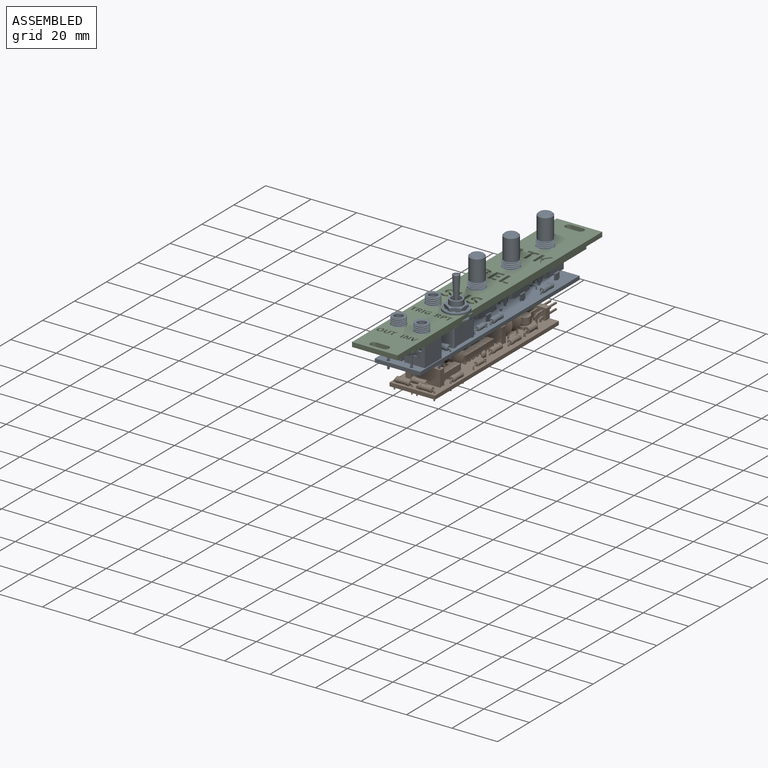
[diagram: assembled view]
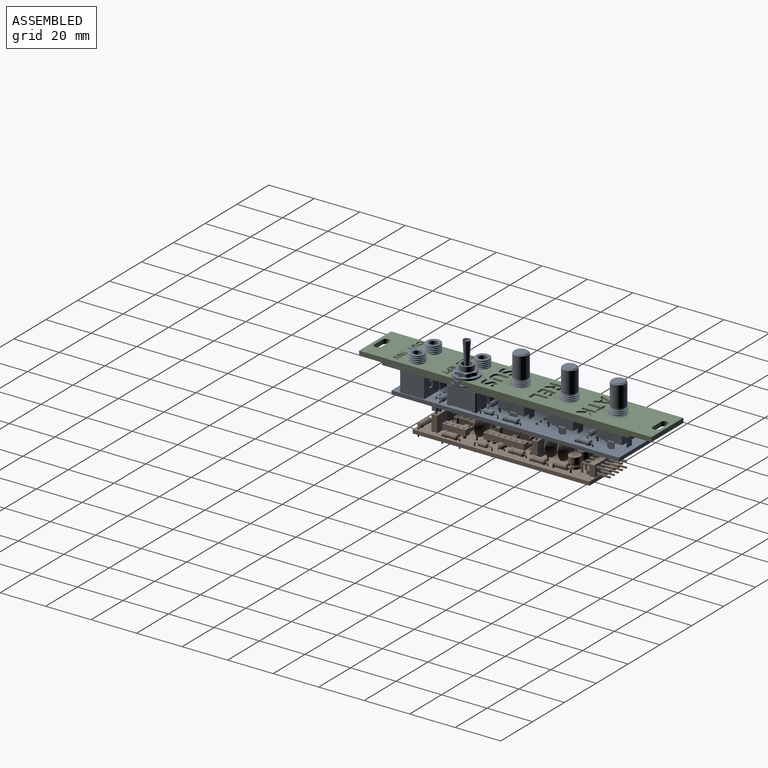
[diagram: assembled view, second angle]
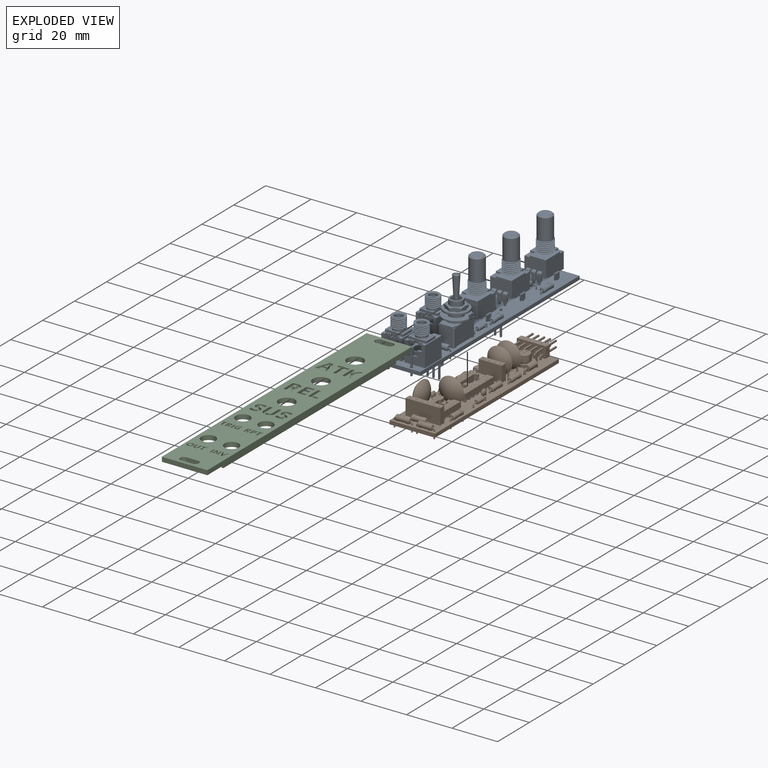
[diagram: exploded view]
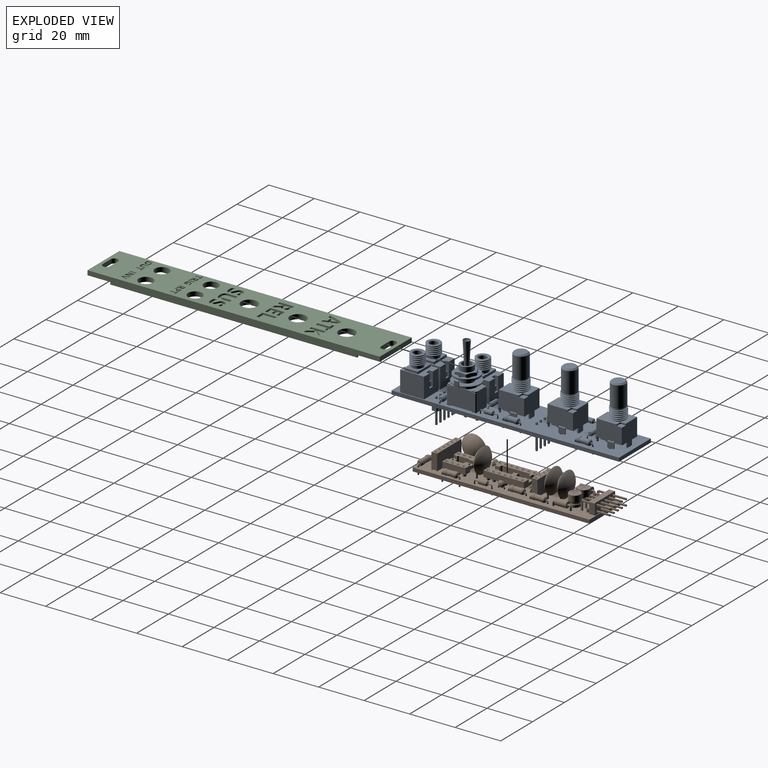
[diagram: exploded view, second angle]
FCSTD DOCUMENT  (FreeCAD 0.20R29177 (Git))
Label: ASREnvelope_panel
License: All rights reserved
LicenseURL: http://en.wikipedia.org/wiki/All_rights_reserved
objects: Part::Feature×53, App::Link×27, App::Part×15, Part::Part2DObjectPython×7, PartDesign::Pocket×7, PartDesign::SubShapeBinder×5, Sketcher::SketchObject×4, PartDesign::CoordinateSystem×2, PartDesign::Pad×2, Spreadsheet::Sheet×1, PartDesign::Body×1
note: 90 computed .brp shape members not serialized (recipe doc carries the construction recipe); baked Part::Feature solids carry a one-line shape summary decoded from their .brp

FEATURE [PartDesign::CoordinateSystem] Local_CS_d228
  AttacherType = Attacher::AttachEngine3D
FEATURE [Part::Feature] Pcb_d228
  Placement = pos=(-141.13,44.3888,0) rot=(0,0,1;0rad)
  shape: bbox 20 x 100 x 1.6 mm, 63 faces (baked)
FEATURE [Sketcher::SketchObject] PCB_Sketch_d228
  FullyConstrained = false
  sketch-geometry (4):
    g0: LineSegment StartX=0 StartY=-100 StartZ=0 EndX=20 EndY=-100 EndZ=0
    g1: LineSegment StartX=0 StartY=0 StartZ=0 EndX=0 EndY=-100 EndZ=0
    g2: LineSegment StartX=0 StartY=0 StartZ=0 EndX=20 EndY=0 EndZ=0
    g3: LineSegment StartX=20 StartY=0 StartZ=0 EndX=20 EndY=-100 EndZ=0
  constraints (4):
    c: Coincident(g0,g1)
    c: Coincident(g1,g2)
    c: Coincident(g0,g3)
    c: Coincident(g2,g3)
FEATURE [Part::Feature] Part__Feature  label="RD901F v18"
  shape: bbox 11.35 x 9.5 x 4.75 mm, 24 faces (baked)
FEATURE [Part::Feature] Part__Feature001  label="RD901F v019"
  shape: bbox 11.35 x 9.5 x 2.5 mm, 38 faces (baked)
FEATURE [Part::Feature] Part__Feature002  label="RD901F v020"
  shape: bbox 8.172 x 8.169 x 5.497 mm, 20 faces (baked)
FEATURE [Part::Feature] Part__Feature003  label="RD901F v021"
  shape: bbox 6.35 x 6.35 x 10 mm, 4 faces (baked)
FEATURE [Part::Feature] Part__Feature004  label="RD901F v022"
  shape: bbox 1.15 x 1.8 x 8.5 mm, 16 faces (baked)
FEATURE [Part::Feature] Part__Feature005  label="RD901F v023"
  shape: bbox 1.15 x 1.8 x 8.5 mm, 16 faces (baked)
FEATURE [Part::Feature] Part__Feature006  label="RD901F v024"
  shape: bbox 1.15 x 1.8 x 8.5 mm, 16 faces (baked)
FEATURE [Part::Feature] Part__Feature007  label="RD901F v025"
  shape: bbox 9.5 x 10.3 x 6.25 mm, 46 faces (baked)
FEATURE [App::Part] RD901F_v18  label="RV1_RD901F v026_5cfaebfccd80"
  Group = -> [Part__Feature,Part__Feature001,Part__Feature002,Part__Feature003,Part__Feature004,Part__Feature005,Part__Feature006,Part__Feature007]
  Origin = -> Origin008
  Placement = pos=(10,-50.08,0) rot=(0,0,1;1.5708rad)
FEATURE [Part::Feature] Shape  label="J6_PinHeader_1x04_P254mm_Vertical_c5793d6ff377"
  Placement = pos=(13.8,-40.555,-2) rot=(0.707107,0.707107,0;3.14159rad)
  shape: bbox 10.16 x 2.54 x 11.54 mm, 100 faces (baked)
FEATURE [Part::Feature] Shape001  label="R8_R_Axial_DIN0207_L63mm_D25mm_P762mm_Horizontal_d0f55797378b"
  Placement = pos=(17.62,-13.25,0) rot=(0,0,-1;1.5708rad)
  shape: bbox 2.706 x 8.418 x 5.603 mm, 15 faces (baked)
FEATURE [Part::Feature] Part__Feature008  label="SPDT Toggle Switch Base"
  Placement = pos=(-12.3077,3.81119,0) rot=(0,0,1;0rad)
  shape: bbox 13 x 8 x 7 mm, 18 faces (baked)
FEATURE [Part::Feature] Part__Feature009  label="SPDT Toggle Switch Pin"
  Placement = pos=(-5.80769,-0.188811,0) rot=(1,0,0;1.5708rad)
  shape: bbox 0.95 x 4 x 2.2 mm, 10 faces (baked)
FEATURE [Part::Feature] Part__Feature010  label="SPDT Toggle Switch Pin001"
  Placement = pos=(-0.782692,-0.188811,0) rot=(1,0,0;1.5708rad)
  shape: bbox 0.95 x 4 x 2.2 mm, 10 faces (baked)
FEATURE [Part::Feature] Part__Feature011  label="SPDT Toggle Switch Pin002"
  Placement = pos=(4.24231,-0.188811,0) rot=(1,0,0;1.5708rad)
  shape: bbox 0.95 x 4 x 2.2 mm, 10 faces (baked)
FEATURE [Part::Feature] Part__Feature012  label="SPDT Toggle Switch Treaded Tube"
  Placement = pos=(-18.8077,7.81119,0) rot=(0,0.707107,0.707107;3.14159rad)
  shape: bbox 5.9 x 8.4 x 5.9 mm, 4 faces (baked)
FEATURE [Part::Feature] Part__Feature013  label="SPDT Toggle Switch Treaded Tube001"
  Placement = pos=(-18.8077,7.81119,0) rot=(0,0.707107,0.707107;3.14159rad)
  shape: bbox 13 x 8 x 7.2 mm, 24 faces (baked)
FEATURE [App::Part] SPDT_Toggle_Switch_Treaded_Tube  label="SPDT Toggle Switch Treaded Tube002"
  Group = -> [Part__Feature012,Part__Feature013]
  Origin = -> Origin009
FEATURE [Part::Feature] Part__Feature014  label="Toggle Switch"
  Placement = pos=(-12.3077,12.4185,3.49975) rot=(1,0,0;0.000203rad)
  shape: bbox 3 x 13.06 x 2.998 mm, 3 faces (baked)
FEATURE [Part::Feature] Part__Feature015  label="Toggle Switch001"
  Placement = pos=(-12.3077,12.4185,3.49975) rot=(1,0,0;0.000203rad)
  shape: bbox 1.751 x 0.001064 x 1.751 mm, 2 faces (baked)
FEATURE [App::Part] Toggle_Switch  label="Toggle Switch002"
  Group = -> [Part__Feature014,Part__Feature015]
  Origin = -> Origin010
FEATURE [Part::Feature] Part__Feature016  label="M6x0.5 Hex Nut"
  Placement = pos=(-12.3077,9.81119,3.5) rot=(1,0,0;1.5708rad)
  shape: bbox 9 x 1.5 x 8.993 mm, 21 faces (baked)
FEATURE [Part::Feature] Part__Feature017  label="M6x0.5 Hex Nut001"
  Placement = pos=(-12.3077,13.0612,3.5) rot=(-1,0,0;1.5708rad)
  shape: bbox 9 x 1.5 x 8.993 mm, 21 faces (baked)
FEATURE [Part::Feature] Part__Feature018  label="SPDT Toggle Switch Anti-Rotation Washer"
  Placement = pos=(-12.3077,9.81119,3.53489) rot=(0,0.707107,0.707107;3.14159rad)
  shape: bbox 12 x 2.4 x 12.6 mm, 11 faces (baked)
FEATURE [Part::Feature] Part__Feature019  label="AS 1969 (Internal Tooth Lock Washer Type A) M6"
  Placement = pos=(-12.3077,13.0612,3.5) rot=(0,0,-1;1.5708rad)
  shape: bbox 11 x 0.75 x 11 mm, 51 faces (baked)
FEATURE [App::Part] SPDT_Toggle_Switch  label="SW1_SPDT Toggle Switch_2bed99d01683"
  Group = -> [Part__Feature008,Part__Feature009,Part__Feature010,Part__Feature011,SPDT_Toggle_Switch_Treaded_Tube,Toggle_Switch,Part__Feature016,Part__Feature017,Part__Feature018,Part__Feature019]
  Origin = -> Origin011
  Placement = pos=(11.58,-58.065,0) rot=(0.57735,0.57735,0.57735;2.0944rad)
FEATURE [App::Link] R8_R_Axial_DIN0207_L63mm_D25mm_P762mm_Horizontal_d0f55797378b_ln_  label="R4_R_Axial_DIN0207_L63mm_D25mm_P762mm_Horizontal_360a85140ae1"
  LinkPlacement = pos=(17.6708,-52.5885,0) rot=(0,0,1;1.5708rad)
  LinkedObject = -> Shape001
  Placement = pos=(17.6708,-52.5885,0) rot=(0,0,1;1.5708rad)
FEATURE [Part::Feature] Part__Feature020  label="D_DO-35_SOD27_P7.62mm_Horizontal"
  shape: bbox 8.244 x 0.5 x 4.312 mm, 7 faces (baked)
FEATURE [Part::Feature] Part__Feature021  label="D_DO-35_SOD27_P7.62mm_Horizontal001"
  shape: bbox 4 x 2.165 x 2.165 mm, 9 faces (baked)
FEATURE [App::Part] D_DO_35_SOD27_P7_62mm_Horizontal  label="D6_D_DO-35_SOD27_P7.62mm_Horizontal002_9d686e1b8fd4"
  Group = -> [Part__Feature020,Part__Feature021]
  Origin = -> Origin012
  Placement = pos=(13.9624,-61.8341,0) rot=(0,0,1;3.14159rad)
FEATURE [App::Link] R8_R_Axial_DIN0207_L63mm_D25mm_P762mm_Horizontal_d0f55797378b_ln_001  label="R15_R_Axial_DIN0207_L63mm_D25mm_P762mm_Horizontal_54435105ef1d"
  LinkPlacement = pos=(11.27,-79.5632,0) rot=(0,0,1;0rad)
  LinkedObject = -> Shape001
  Placement = pos=(11.27,-79.5632,0) rot=(0,0,1;0rad)
FEATURE [App::Link] R8_R_Axial_DIN0207_L63mm_D25mm_P762mm_Horizontal_d0f55797378b_ln_002  label="R5_R_Axial_DIN0207_L63mm_D25mm_P762mm_Horizontal_61f591f11686"
  LinkPlacement = pos=(3.65,-60.8689,0) rot=(0,0,1;1.5708rad)
  LinkedObject = -> Shape001
  Placement = pos=(3.65,-60.8689,0) rot=(0,0,1;1.5708rad)
FEATURE [App::Link] D6_D_DO_35_SOD27_P7_62mm_Horizontal002_9d686e1b8fd4_ln_  label="D7_D_DO-35_SOD27_P7.62mm_Horizontal002_dd152aaed19a"
  LinkPlacement = pos=(2.38,-10.075,0) rot=(0,0,-1;1.5708rad)
  LinkedObject = -> D_DO_35_SOD27_P7_62mm_Horizontal
  Placement = pos=(2.38,-10.075,0) rot=(0,0,-1;1.5708rad)
FEATURE [Part::Feature] Part__Feature022  label="T"
  shape: bbox 7.5 x 0.5 x 8.5 mm, 14 faces (baked)
FEATURE [Part::Feature] Part__Feature023  label="TN"
  shape: bbox 7.5 x 0.5 x 8.5 mm, 14 faces (baked)
FEATURE [Part::Feature] Part__Feature024  label="Hole"
  shape: bbox 6.281 x 6.417 x 6.463 mm, 37 faces (baked)
FEATURE [Part::Feature] Part__Feature025  label="S"
  shape: bbox 5.8 x 9.73 x 11.55 mm, 33 faces (baked)
FEATURE [Part::Feature] Part__Feature026  label="Body"
  shape: bbox 9 x 10.5 x 10 mm, 61 faces (baked)
FEATURE [App::Part] PJ398SM  label="J1_PJ398SM_0ccd2c35aaee"
  Group = -> [Part__Feature022,Part__Feature023,Part__Feature024,Part__Feature025,Part__Feature026]
  Origin = -> Origin013
  Placement = pos=(4.92,-70.4,0) rot=(0,0,1;0rad)
FEATURE [App::Link] J1_PJ398SM_0ccd2c35aaee_ln_  label="J4_PJ398SM_9d1b38e3e85b"
  LinkPlacement = pos=(15.08,-91.99,0) rot=(0,0,1;0rad)
  LinkedObject = -> PJ398SM
  Placement = pos=(15.08,-91.99,0) rot=(0,0,1;0rad)
FEATURE [App::Link] J1_PJ398SM_0ccd2c35aaee_ln_001  label="J3_PJ398SM_65f0955d3cb8"
  LinkPlacement = pos=(4.92,-91.99,0) rot=(0,0,1;0rad)
  LinkedObject = -> PJ398SM
  Placement = pos=(4.92,-91.99,0) rot=(0,0,1;0rad)
FEATURE [App::Link] RV1_RD901F_v026_5cfaebfccd80_ln_  label="RV2_RD901F v026_078bd1707ea1"
  LinkPlacement = pos=(10,-7.1925,0) rot=(0,0,1;1.5708rad)
  LinkedObject = -> RD901F_v18
  Placement = pos=(10,-7.1925,0) rot=(0,0,1;1.5708rad)
FEATURE [App::Link] RV1_RD901F_v026_5cfaebfccd80_ln_001  label="RV3_RD901F v026_484e86c151ea"
  LinkPlacement = pos=(10,-28.6616,0) rot=(0,0,1;1.5708rad)
  LinkedObject = -> RD901F_v18
  Placement = pos=(10,-28.6616,0) rot=(0,0,1;1.5708rad)
FEATURE [App::Link] D6_D_DO_35_SOD27_P7_62mm_Horizontal002_9d686e1b8fd4_ln_001  label="D8_D_DO-35_SOD27_P7.62mm_Horizontal002_0813f1ccfe0c"
  LinkPlacement = pos=(6.19,-18.33,0) rot=(0,0,1;0rad)
  LinkedObject = -> D_DO_35_SOD27_P7_62mm_Horizontal
  Placement = pos=(6.19,-18.33,0) rot=(0,0,1;0rad)
FEATURE [App::Link] D6_D_DO_35_SOD27_P7_62mm_Horizontal002_9d686e1b8fd4_ln_002  label="D5_D_DO-35_SOD27_P7.62mm_Horizontal002_e6eddd50d31d"
  LinkPlacement = pos=(2.38,-21.505,0) rot=(0,0,-1;1.5708rad)
  LinkedObject = -> D_DO_35_SOD27_P7_62mm_Horizontal
  Placement = pos=(2.38,-21.505,0) rot=(0,0,-1;1.5708rad)
FEATURE [App::Link] D6_D_DO_35_SOD27_P7_62mm_Horizontal002_9d686e1b8fd4_ln_003  label="D4_D_DO-35_SOD27_P7.62mm_Horizontal002_9628a76082fe"
  LinkPlacement = pos=(17.62,-62.596,0) rot=(0,0,1;1.5708rad)
  LinkedObject = -> D_DO_35_SOD27_P7_62mm_Horizontal
  Placement = pos=(17.62,-62.596,0) rot=(0,0,1;1.5708rad)
FEATURE [Part::Feature] Shape002  label="J5_PinHeader_1x06_P254mm_Vertical_bb2ba54dd0c6"
  Placement = pos=(3.65,-82.8653,-2) rot=(0.707107,-0.707107,0;3.14159rad)
  shape: bbox 15.24 x 2.54 x 11.54 mm, 148 faces (baked)
FEATURE [App::Link] R8_R_Axial_DIN0207_L63mm_D25mm_P762mm_Horizontal_d0f55797378b_ln_003  label="R14_R_Axial_DIN0207_L63mm_D25mm_P762mm_Horizontal_b386a693db67"
  LinkPlacement = pos=(8.73,-79.5632,0) rot=(0,0,1;3.14159rad)
  LinkedObject = -> Shape001
  Placement = pos=(8.73,-79.5632,0) rot=(0,0,1;3.14159rad)
FEATURE [App::Part] Top_d228
  Group = -> [RD901F_v18,Shape,Shape001,SPDT_Toggle_Switch,R8_R_Axial_DIN0207_L63mm_D25mm_P762mm_Horizontal_d0f55797378b_ln_,D_DO_35_SOD27_P7_62mm_Horizontal,R8_R_Axial_DIN0207_L63mm_D25mm_P762mm_Horizontal_d0f55797378b_ln_001,R8_R_Axial_DIN0207_L63mm_D25mm_P762mm_Horizontal_d0f55797378b_ln_002,D6_D_DO_35_SOD27_P7_62mm_Horizontal002_9d686e1b8fd4_ln_,PJ398SM,J1_PJ398SM_0ccd2c35aaee_ln_,+8 more]
  Origin = -> Origin003
FEATURE [App::Part] Step_Models_d228
  Group = -> [Top_d228]
  Origin = -> Origin002
FEATURE [Part::Feature] pads_area019001  label="topPads_d228"
  Placement = pos=(-141.13,44.3888,0.02) rot=(0,0,1;0rad)
  shape: bbox 19.38 x 93.34 x 2e-07 mm, 57 faces, 0 solids (baked)
FEATURE [Part::Feature] pads_area019021001  label="botPads_d228"
  Placement = pos=(-141.13,44.3888,-1.62) rot=(0,0,1;0rad)
  shape: bbox 19.38 x 93.34 x 2e-07 mm, 57 faces, 0 solids (baked)
FEATURE [Part::Feature] Shape003001  label="botTracks_d228"
  Placement = pos=(-141.13,44.3888,-1.61) rot=(0,0,1;0rad)
  shape: bbox 19.24 x 78.75 x 2e-07 mm, 21 faces, 0 solids (baked)
FEATURE [Part::Feature] zones_area001  label="botZones_d228"
  Placement = pos=(-141.13,44.3888,-1.61) rot=(0,0,1;0rad)
  shape: bbox 20.25 x 100.3 x 2e-07 mm, 1 faces, 0 solids (baked)
FEATURE [App::Part] Board_Geoms_d228
  Group = -> [Local_CS_d228,Pcb_d228,PCB_Sketch_d228,pads_area019001,pads_area019021001,Shape003001,zones_area001]
  Origin = -> Origin
FEATURE [App::Part] Board_d228  label="ASREnvelope_control"
  Group = -> [Board_Geoms_d228,Step_Models_d228]
  Origin = -> Origin001
FEATURE [PartDesign::SubShapeBinder] Binder
  BindCopyOnChange = 0
  BindMode = 0
  ClaimChildren = false
  Context = -> Body [Binder.]
  Fuse = false
  MakeFace = true
  OffsetFill = false
  OffsetIntersection = false
  OffsetJoinType = 0
  OffsetOpenResult = false
  PartialLoad = false
  Relative = true
  Support = -> [Board_d228[Board_Geoms_d228.Pcb_d228.Edge11],ShapeString002]
  _Version = 2
FEATURE [PartDesign::SubShapeBinder] Binder001
  BindCopyOnChange = 0
  BindMode = 0
  ClaimChildren = false
  Context = -> Body [Binder001.]
  Fuse = false
  MakeFace = true
  OffsetFill = false
  OffsetIntersection = false
  OffsetJoinType = 0
  OffsetOpenResult = false
  PartialLoad = false
  Relative = true
  Support = -> [Board_d228[Board_Geoms_d228.Pcb_d228.Edge3]]
  _Version = 2
FEATURE [PartDesign::SubShapeBinder] Binder002
  BindCopyOnChange = 0
  BindMode = 0
  ClaimChildren = false
  Context = -> Body [Binder002.]
  Fuse = false
  MakeFace = true
  OffsetFill = false
  OffsetIntersection = false
  OffsetJoinType = 0
  OffsetOpenResult = false
  PartialLoad = false
  Relative = true
  Support = -> [Board_d228[Board_Geoms_d228.Pcb_d228.Edge9]]
  _Version = 2
FEATURE [Sketcher::SketchObject] Sketch
  ExternalGeometry = -> [Binder001,Binder002,Binder]
  FullyConstrained = true
  MapMode = 5
  Support = -> [XY_Plane014]
  sketch-geometry (19):
    g0: LineSegment StartX=0 StartY=14.25 StartZ=0 EndX=20 EndY=14.25 EndZ=0
    g1: LineSegment StartX=20 StartY=14.25 StartZ=0 EndX=20 EndY=-114.25 EndZ=0
    g2: LineSegment StartX=20 StartY=-114.25 StartZ=0 EndX=0 EndY=-114.25 EndZ=0
    g3: LineSegment StartX=0 StartY=-114.25 StartZ=0 EndX=0 EndY=14.25 EndZ=0
    g4: ArcOfCircle CenterX=7.5 CenterY=-111.15 CenterZ=0 NormalX=0 NormalY=0 NormalZ=1 AngleXU=0 Radius=1.6 StartAngle=1.5708 EndAngle=4.71239
    g5: ArcOfCircle CenterX=12.5 CenterY=-111.15 CenterZ=0 NormalX=0 NormalY=0 NormalZ=1 AngleXU=0 Radius=1.6 StartAngle=4.71239 EndAngle=7.85398
    g6: LineSegment StartX=7.5 StartY=-112.75 StartZ=0 EndX=12.5 EndY=-112.75 EndZ=0
    g7: LineSegment StartX=12.5 StartY=-109.55 StartZ=0 EndX=7.5 EndY=-109.55 EndZ=0
    g8: ArcOfCircle CenterX=7.5 CenterY=11.15 CenterZ=0 NormalX=0 NormalY=0 NormalZ=1 AngleXU=0 Radius=1.6 StartAngle=1.5708 EndAngle=4.71239
    g9: ArcOfCircle CenterX=12.5 CenterY=11.15 CenterZ=0 NormalX=0 NormalY=0 NormalZ=1 AngleXU=0 Radius=1.6 StartAngle=4.71239 EndAngle=7.85398
    g10: LineSegment StartX=7.5 StartY=9.55 StartZ=0 EndX=12.5 EndY=9.55 EndZ=0
    g11: LineSegment StartX=12.5 StartY=12.75 StartZ=0 EndX=7.5 EndY=12.75 EndZ=0
    g12: Circle CenterX=10 CenterY=-7.2 CenterZ=0 NormalX=0 NormalY=0 NormalZ=1 AngleXU=0 Radius=3.55
    g13: Circle CenterX=10 CenterY=-28.65 CenterZ=0 NormalX=0 NormalY=0 NormalZ=1 AngleXU=0 Radius=3.55
    g14: Circle CenterX=10 CenterY=-50.1 CenterZ=0 NormalX=0 NormalY=0 NormalZ=1 AngleXU=0 Radius=3.55
    g15: Circle CenterX=4.92 CenterY=-91.99 CenterZ=0 NormalX=0 NormalY=0 NormalZ=1 AngleXU=0 Radius=3.1
    g16: Circle CenterX=15.08 CenterY=-91.99 CenterZ=0 NormalX=0 NormalY=0 NormalZ=1 AngleXU=0 Radius=3.1
    g17: Circle CenterX=4.92 CenterY=-70.4 CenterZ=0 NormalX=0 NormalY=0 NormalZ=1 AngleXU=0 Radius=3.1
    g18: Circle CenterX=15.08 CenterY=-70.4 CenterZ=0 NormalX=0 NormalY=0 NormalZ=1 AngleXU=0 Radius=3.1
  constraints (53):
    c: Coincident(g0,g1)
    c: Coincident(g1,g2)
    c: Coincident(g2,g3)
    c: Coincident(g3,g0)
    c: Horizontal(g0)
    c: Horizontal(g2)
    c: Vertical(g1)
    c: Vertical(g3)
    c: PointOnObject(g0,g-2)
    c: DistanceY(g1,g1) = 128.5
    c: PointOnObject(g-6,g1)
    c: DistanceY(g2,g-5) = 14.25
    c: Tangent(g4,g6) = -1.5708
    c: Tangent(g6,g5) = -1.5708
    c: Tangent(g5,g7) = -1.5708
    c: Tangent(g7,g4) = -1.5708
    c: Equal(g4,g5)
    c: Horizontal(g6)
    c: DistanceY(g5,g5) = 3.2
    c: DistanceY(g2,g5) = 3.1
    c: DistanceX(g2,g4) = 7.5
    c: DistanceX(g4,g5) = 5
    c: Tangent(g8,g10) = -1.5708
    c: Tangent(g10,g9) = -1.5708
    c: Tangent(g9,g11) = -1.5708
    c: Tangent(g11,g8) = -1.5708
    c: Equal(g8,g9)
    c: Horizontal(g10)
    c: DistanceX(g8,g9) = 5
    c: DistanceY(g9,g9) = 3.2
    c: DistanceX(g0,g8) = 7.5
    c: DistanceY(g8,g0) = 3.1
    c: DistanceX(g0,g12) = 10
    c: DistanceY(g12,g0) = 21.45
    c: Vertical(g12,g13)
    c: Vertical(g13,g14)
    c: DistanceY(g13,g12) = 21.45
    c: DistanceY(g14,g13) = 21.45
    c: Equal(g12,g13)
    c: Equal(g13,g14)
    c: Diameter(g13) = 7.1
    c: Vertical(g18,g16)
    c: Vertical(g17,g15)
    c: Horizontal(g16,g15)
    c: Horizontal(g18,g17)
    c: Equal(g16,g15)
    c: Equal(g15,g17)
    c: Diameter(g16) = 6.2
    c: DistanceX(g15,g16) = 10.16
    c: DistanceY(g15,g17) = 21.59
    c: DistanceY(g-5,g15) = 8.01
    c: DistanceX(g-5,g15) = 4.92
    c: Diameter(g18) = 6.2
FEATURE [PartDesign::SubShapeBinder] Binder004
  BindCopyOnChange = 0
  BindMode = 0
  ClaimChildren = false
  Context = -> Body [Binder004.]
  Fuse = false
  MakeFace = true
  OffsetFill = false
  OffsetIntersection = false
  OffsetJoinType = 0
  OffsetOpenResult = false
  PartialLoad = false
  Relative = true
  Support = -> [Board_d228[Board_Geoms_d228.Pcb_d228.Vertex3]]
  _Version = 2
FEATURE [Spreadsheet::Sheet] Spreadsheet
  cells = A1(panel_height)=panel_height; B1=128.5; A2(control_board_height)=control_board_offset; B2=14.25
FEATURE [PartDesign::Pad] Pad
  Direction = (0,0,1)
  Length = 2
  Length2 = 10
  Profile = -> Sketch
  ReferenceAxis = -> Sketch [N_Axis]
  Type = 0
FEATURE [Sketcher::SketchObject] Sketch001
  ExternalGeometry = -> [Pad]
  FullyConstrained = true
  MapMode = 5
  Placement = pos=(0,0,0) rot=(1,0,0;3.14159rad)
  Support = -> [Pad]
  sketch-geometry (8):
    g0: LineSegment StartX=0 StartY=-4.25 StartZ=0 EndX=0.8 EndY=-4.25 EndZ=0
    g1: LineSegment StartX=0.8 StartY=-4.25 StartZ=0 EndX=0.8 EndY=104.25 EndZ=0
    g2: LineSegment StartX=0.8 StartY=104.25 StartZ=0 EndX=0 EndY=104.25 EndZ=0
    g3: LineSegment StartX=0 StartY=104.25 StartZ=0 EndX=0 EndY=-4.25 EndZ=0
    g4: LineSegment StartX=20 StartY=104.25 StartZ=0 EndX=19.2 EndY=104.25 EndZ=0
    g5: LineSegment StartX=19.2 StartY=104.25 StartZ=0 EndX=19.2 EndY=-4.25 EndZ=0
    g6: LineSegment StartX=19.2 StartY=-4.25 StartZ=0 EndX=20 EndY=-4.25 EndZ=0
    g7: LineSegment StartX=20 StartY=-4.25 StartZ=0 EndX=20 EndY=104.25 EndZ=0
  constraints (24):
    c: Coincident(g0,g1)
    c: Coincident(g1,g2)
    c: Coincident(g2,g3)
    c: Coincident(g3,g0)
    c: Horizontal(g0)
    c: Horizontal(g2)
    c: Vertical(g1)
    c: Vertical(g3)
    c: PointOnObject(g0,g-2)
    c: DistanceX(g2,g2) = 0.8
    c: Coincident(g4,g5)
    c: Coincident(g5,g6)
    c: Coincident(g6,g7)
    c: Coincident(g7,g4)
    c: Horizontal(g4)
    c: Horizontal(g6)
    c: Vertical(g5)
    c: Vertical(g7)
    c: DistanceX(g6,g6) = 0.8
    c: DistanceY(g-3,g0) = 10
    c: DistanceY(g-3,g6) = 10
    c: DistanceY(g2,g-4) = 10
    c: DistanceY(g4,g-4) = 10
    c: PointOnObject(g4,g-5)
FEATURE [PartDesign::Pad] Pad001
  BaseFeature = -> Pad
  Direction = (0,0,-1)
  Length = 1
  Length2 = 10
  Profile = -> Sketch001
  ReferenceAxis = -> Sketch001 [N_Axis]
  Type = 0
FEATURE [Part::Part2DObjectPython] ShapeString  label="ATK"  # Draft 2D object (typed FeaturePython)
  FontFile = <userpath>/Desktop/OpenSans-Bold.ttf
  MakeFace = true
  Placement = pos=(1.47,-20.32,1) rot=(0,0,1;0rad)
  Size = 8
  String = ATK
  Tracking = 0
FEATURE [Part::Part2DObjectPython] ShapeString001  label="REL"  # Draft 2D object (typed FeaturePython)
  FontFile = <userpath>/Desktop/OpenSans-Bold.ttf
  MakeFace = true
  Placement = pos=(1.85,-41.77,1) rot=(0,0,1;0rad)
  Size = 8
  String = REL
  Tracking = 0
FEATURE [Part::Part2DObjectPython] ShapeString002  label="SUS"  # Draft 2D object (typed FeaturePython)
  FontFile = <userpath>/Desktop/OpenSans-Bold.ttf
  MakeFace = true
  Placement = pos=(1.92,-63.22,2) rot=(0,0,1;0rad)
  Size = 8
  String = SUS
  Tracking = 0
FEATURE [Part::Part2DObjectPython] ShapeString003  label="TRIG"  # Draft 2D object (typed FeaturePython)
  FontFile = <userpath>/Desktop/OpenSans-Bold.ttf
  MakeFace = true
  Placement = pos=(0.66,-79.56,1) rot=(0,0,1;0rad)
  Size = 3.5
  String = TRIG
  Tracking = 0
FEATURE [Part::Part2DObjectPython] ShapeString004  label="RPT"  # Draft 2D object (typed FeaturePython)
  FontFile = <userpath>/Desktop/OpenSans-Bold.ttf
  MakeFace = true
  Placement = pos=(11.25,-79.56,1) rot=(0,0,1;0rad)
  Size = 3.5
  String = RPT
  Tracking = 0
FEATURE [Part::Part2DObjectPython] ShapeString005  label="OUT"  # Draft 2D object (typed FeaturePython)
  FontFile = <userpath>/Desktop/OpenSans-Bold.ttf
  MakeFace = true
  Placement = pos=(0.84,-101.15,1) rot=(0,0,1;0rad)
  Size = 3.5
  String = OUT
  Tracking = 0
FEATURE [Part::Part2DObjectPython] ShapeString006  label="INV"  # Draft 2D object (typed FeaturePython)
  FontFile = <userpath>/Desktop/OpenSans-Bold.ttf
  MakeFace = true
  Placement = pos=(11.36,-101.15,1) rot=(0,0,1;0rad)
  Size = 3.5
  String = INV
  Tracking = 0
FEATURE [PartDesign::SubShapeBinder] Binder003
  BindCopyOnChange = 0
  BindMode = 0
  ClaimChildren = false
  Context = -> Body [Binder003.]
  Fuse = false
  MakeFace = true
  OffsetFill = false
  OffsetIntersection = false
  OffsetJoinType = 0
  OffsetOpenResult = false
  PartialLoad = false
  Relative = true
  Support = -> [Board_d228[Board_Geoms_d228.Pcb_d228.Edge6]]
  _Version = 2
FEATURE [PartDesign::Pocket] Pocket
  BaseFeature = -> Pad001
  Direction = (0,0,-1)
  Length = 1
  Length2 = 5
  Profile = -> ShapeString
  ReferenceAxis = -> ShapeString [N_Axis]
  Reversed = true
  Type = 0
FEATURE [PartDesign::Pocket] Pocket001
  BaseFeature = -> Pocket
  Direction = (0,0,-1)
  Length = 1
  Length2 = 5
  Profile = -> ShapeString001
  ReferenceAxis = -> ShapeString001 [N_Axis]
  Reversed = true
  Type = 0
FEATURE [PartDesign::Pocket] Pocket002
  BaseFeature = -> Pocket001
  Direction = (0,0,-1)
  Length = 1
  Length2 = 5
  Profile = -> ShapeString002
  ReferenceAxis = -> ShapeString002 [N_Axis]
  Type = 0
FEATURE [PartDesign::Pocket] Pocket003
  BaseFeature = -> Pocket002
  Direction = (0,0,-1)
  Length = 1
  Length2 = 5
  Profile = -> ShapeString003
  ReferenceAxis = -> ShapeString003 [N_Axis]
  Reversed = true
  Type = 0
FEATURE [PartDesign::Pocket] Pocket004
  BaseFeature = -> Pocket003
  Direction = (0,0,-1)
  Length = 1
  Length2 = 5
  Profile = -> ShapeString004
  ReferenceAxis = -> ShapeString004 [N_Axis]
  Reversed = true
  Type = 0
FEATURE [PartDesign::Pocket] Pocket005
  BaseFeature = -> Pocket004
  Direction = (0,0,-1)
  Length = 1
  Length2 = 5
  Profile = -> ShapeString005
  ReferenceAxis = -> ShapeString005 [N_Axis]
  Reversed = true
  Type = 0
FEATURE [PartDesign::Pocket] Pocket006
  BaseFeature = -> Pocket005
  Direction = (0,0,-1)
  Length = 1
  Length2 = 5
  Profile = -> ShapeString006
  ReferenceAxis = -> ShapeString006 [N_Axis]
  Reversed = true
  Type = 0
FEATURE [PartDesign::Body] Body  label="Body001"
  Group = -> [Binder,Binder001,Binder002,Binder003,Sketch,Binder004,Pad,Sketch001,Pad001,ShapeString,ShapeString001,ShapeString003,ShapeString004,ShapeString006,ShapeString002,ShapeString005,Pocket,Pocket001,Pocket002,Pocket003,Pocket004,Pocket005,Pocket006]
  Origin = -> Origin014
  Placement = pos=(0,0,10) rot=(0,0,1;0rad)
  Tip = -> Pocket006
FEATURE [PartDesign::CoordinateSystem] Local_CS_d418
  AttacherType = Attacher::AttachEngine3D
FEATURE [Part::Feature] Pcb_d418
  Placement = pos=(-169.568,52.451,0) rot=(0,0,1;0rad)
  shape: bbox 20 x 77.72 x 1.6 mm, 90 faces (baked)
FEATURE [Sketcher::SketchObject] PCB_Sketch_d418
  FullyConstrained = false
  sketch-geometry (4):
    g0: LineSegment StartX=0 StartY=-77.724 StartZ=0 EndX=20 EndY=-77.724 EndZ=0
    g1: LineSegment StartX=0 StartY=0 StartZ=0 EndX=20 EndY=0 EndZ=0
    g2: LineSegment StartX=20 StartY=0 StartZ=0 EndX=20 EndY=-77.724 EndZ=0
    g3: LineSegment StartX=0 StartY=0 StartZ=0 EndX=0 EndY=-77.724 EndZ=0
  constraints (4):
    c: Coincident(g0,g3)
    c: Coincident(g1,g3)
    c: Coincident(g0,g2)
    c: Coincident(g1,g2)
FEATURE [Part::Feature] Shape003002  label="C8_C_Disc_D30mm_W16mm_P250mm_8337a868f1fd"
  Placement = pos=(2.2884,-54.8694,0) rot=(0,0,1;1.5708rad)
  shape: bbox 1.6 x 3 x 5.1 mm, 12 faces (baked)
FEATURE [Part::Feature] Shape003003  label="R9_R_Axial_DIN0207_L63mm_D25mm_P762mm_Horizontal_c5b17586e21b"
  Placement = pos=(5.184,-30.861,0) rot=(0,0,1;0rad)
  shape: bbox 8.418 x 2.706 x 5.603 mm, 15 faces (baked)
FEATURE [Part::Feature] Shape003004  label="J7_PinSocket_1x04_P254mm_Vertical_4900f22e65b3"
  Placement = pos=(6.2,-27.534,0) rot=(0,0,1;1.5708rad)
  shape: bbox 10.16 x 2.54 x 10.1 mm, 134 faces (baked)
FEATURE [Part::Feature] Part__Feature027  label="D_DO-35_SOD27_P7.62mm_Horizontal002"
  shape: bbox 8.244 x 0.5 x 4.312 mm, 7 faces (baked)
FEATURE [Part::Feature] Part__Feature028  label="D_DO-35_SOD27_P7.62mm_Horizontal003"
  shape: bbox 4 x 2.165 x 2.165 mm, 9 faces (baked)
FEATURE [App::Part] D_DO_35_SOD27_P7_62mm_Horizontal001  label="D1_D_DO-35_SOD27_P7.62mm_Horizontal002_f98b4e42c301"
  Group = -> [Part__Feature027,Part__Feature028]
  Origin = -> Origin019
  Placement = pos=(18.5444,-43.9166,0) rot=(0,0,-1;1.5708rad)
FEATURE [Part::Feature] Shape003  label="C7_C_Disc_D110mm_W50mm_P750mm_84b0f1c3ab3e"
  Placement = pos=(6.2,-17.145,0) rot=(0,0,1;0rad)
  shape: bbox 11 x 5 x 13.1 mm, 10 faces (baked)
FEATURE [App::Link] R9_R_Axial_DIN0207_L63mm_D25mm_P762mm_Horizontal_c5b17586e21b_ln_  label="R1_R_Axial_DIN0207_L63mm_D25mm_P762mm_Horizontal_d50c9682e433"
  LinkPlacement = pos=(17.376,-27.8638,0) rot=(0,0,1;1.5708rad)
  LinkedObject = -> Shape003003
  Placement = pos=(17.376,-27.8638,0) rot=(0,0,1;1.5708rad)
FEATURE [Part::Feature] Shape004  label="U1_DIP_14_W762mm_Socket_1cdfdc079f67"
  Placement = pos=(13.0988,-49.2556,0) rot=(0,0,1;3.14159rad)
  shape: bbox 10.16 x 17.78 x 7.787 mm, 207 faces (baked)
FEATURE [App::Link] R9_R_Axial_DIN0207_L63mm_D25mm_P762mm_Horizontal_c5b17586e21b_ln_001  label="R3_R_Axial_DIN0207_L63mm_D25mm_P762mm_Horizontal_e50ea7562b2b"
  LinkPlacement = pos=(2.39,-49.911,0) rot=(0,0,1;1.5708rad)
  LinkedObject = -> Shape003003
  Placement = pos=(2.39,-49.911,0) rot=(0,0,1;1.5708rad)
FEATURE [Part::Feature] Shape005  label="C3_CP_Radial_D50mm_P250mm_c2337230d0a3"
  Placement = pos=(14.074,-11.43,0) rot=(0,0,1;3.14159rad)
  shape: bbox 6.128 x 6.515 x 7 mm, 49 faces (baked)
FEATURE [Part::Feature] Shape006  label="J2_PinHeader_2x05_P254mm_Horizontal_1829e6048090"
  Placement = pos=(4.73811,-6.858,0) rot=(0,0,1;1.5708rad)
  shape: bbox 12.7 x 12.9 x 8.08 mm, 244 faces (baked)
FEATURE [App::Link] C7_C_Disc_D110mm_W50mm_P750mm_84b0f1c3ab3e_ln_  label="C5_C_Disc_D110mm_W50mm_P750mm_a32d087b95b8"
  LinkPlacement = pos=(6.5648,-53.6702,0) rot=(0,0,1;0rad)
  LinkedObject = -> Shape003
  Placement = pos=(6.5648,-53.6702,0) rot=(0,0,1;0rad)
FEATURE [App::Link] R9_R_Axial_DIN0207_L63mm_D25mm_P762mm_Horizontal_c5b17586e21b_ln_002  label="R2_R_Axial_DIN0207_L63mm_D25mm_P762mm_Horizontal_2f884a6fe19e"
  LinkPlacement = pos=(16.2584,-38.0746,0) rot=(0,0,1;1.5708rad)
  LinkedObject = -> Shape003003
  Placement = pos=(16.2584,-38.0746,0) rot=(0,0,1;1.5708rad)
FEATURE [App::Link] C7_C_Disc_D110mm_W50mm_P750mm_84b0f1c3ab3e_ln_001  label="C6_C_Disc_D110mm_W50mm_P750mm_80f8aa190c6f"
  LinkPlacement = pos=(6.2,-22.733,0) rot=(0,0,1;0rad)
  LinkedObject = -> Shape003
  Placement = pos=(6.2,-22.733,0) rot=(0,0,1;0rad)
FEATURE [App::Link] R9_R_Axial_DIN0207_L63mm_D25mm_P762mm_Horizontal_c5b17586e21b_ln_003  label="R6_R_Axial_DIN0207_L63mm_D25mm_P762mm_Horizontal_e3bb4c0e5df2"
  LinkPlacement = pos=(1.7296,-30.861,0) rot=(0,0,-1;1.5708rad)
  LinkedObject = -> Shape003003
  Placement = pos=(1.7296,-30.861,0) rot=(0,0,-1;1.5708rad)
FEATURE [App::Link] C8_C_Disc_D30mm_W16mm_P250mm_8337a868f1fd_ln_  label="C1_C_Disc_D30mm_W16mm_P250mm_f410781a739c"
  LinkPlacement = pos=(16.0044,-42.7282,0) rot=(0,0,1;1.5708rad)
  LinkedObject = -> Shape003002
  Placement = pos=(16.0044,-42.7282,0) rot=(0,0,1;1.5708rad)
FEATURE [Part::Feature] Shape007  label="U2_DIP_8_W762mm_Socket_326541f2552b"
  Placement = pos=(7.7748,-58.1406,0) rot=(0,0,1;0rad)
  shape: bbox 10.16 x 10.16 x 7.787 mm, 128 faces (baked)
FEATURE [Part::Feature] Shape008  label="J8_PinSocket_1x06_P254mm_Vertical_00e231fd98fe"
  Placement = pos=(3.675,-69.8442,0) rot=(0,0,1;1.5708rad)
  shape: bbox 15.24 x 2.54 x 10.1 mm, 196 faces (baked)
FEATURE [App::Link] R9_R_Axial_DIN0207_L63mm_D25mm_P762mm_Horizontal_c5b17586e21b_ln_004  label="R13_R_Axial_DIN0207_L63mm_D25mm_P762mm_Horizontal_0c648dc45b12"
  LinkPlacement = pos=(6.0984,-73.1774,0) rot=(0,0,1;0rad)
  LinkedObject = -> Shape003003
  Placement = pos=(6.0984,-73.1774,0) rot=(0,0,1;0rad)
FEATURE [App::Link] R9_R_Axial_DIN0207_L63mm_D25mm_P762mm_Horizontal_c5b17586e21b_ln_005  label="R10_R_Axial_DIN0207_L63mm_D25mm_P762mm_Horizontal_571a61df32f9"
  LinkPlacement = pos=(18.4736,-58.1406,0) rot=(0,0,-1;1.5708rad)
  LinkedObject = -> Shape003003
  Placement = pos=(18.4736,-58.1406,0) rot=(0,0,-1;1.5708rad)
FEATURE [App::Link] R9_R_Axial_DIN0207_L63mm_D25mm_P762mm_Horizontal_c5b17586e21b_ln_006  label="R7_R_Axial_DIN0207_L63mm_D25mm_P762mm_Horizontal_0c45bebdd785"
  LinkPlacement = pos=(2.1868,-27.813,0) rot=(0,0,1;1.5708rad)
  LinkedObject = -> Shape003003
  Placement = pos=(2.1868,-27.813,0) rot=(0,0,1;1.5708rad)
FEATURE [App::Link] R9_R_Axial_DIN0207_L63mm_D25mm_P762mm_Horizontal_c5b17586e21b_ln_007  label="R12_R_Axial_DIN0207_L63mm_D25mm_P762mm_Horizontal_27a3dd00f710"
  LinkPlacement = pos=(18.5952,-76.2,0) rot=(0,0,1;3.14159rad)
  LinkedObject = -> Shape003003
  Placement = pos=(18.5952,-76.2,0) rot=(0,0,1;3.14159rad)
FEATURE [App::Link] C3_CP_Radial_D50mm_P250mm_c2337230d0a3_ln_  label="C2_CP_Radial_D50mm_P250mm_a3dab1ed2047"
  LinkPlacement = pos=(8.3844,-11.43,0) rot=(0,0,1;3.14159rad)
  LinkedObject = -> Shape005
  Placement = pos=(8.3844,-11.43,0) rot=(0,0,1;3.14159rad)
FEATURE [Part::Feature] Shape009  label="D3_D_DO-41_SOD81_P7.62mm_Horizontal_f38e6f903ea0"
  Placement = pos=(17.376,-17.7292,0) rot=(0,0,1;1.5708rad)
  shape: bbox 2.72 x 8.618 x 5.71 mm, 15 faces (baked)
FEATURE [App::Link] R9_R_Axial_DIN0207_L63mm_D25mm_P762mm_Horizontal_c5b17586e21b_ln_008  label="R11_R_Axial_DIN0207_L63mm_D25mm_P762mm_Horizontal_f25ac1ddf65b"
  LinkPlacement = pos=(1.1708,-76.2254,0) rot=(0,0,1;0rad)
  LinkedObject = -> Shape003003
  Placement = pos=(1.1708,-76.2254,0) rot=(0,0,1;0rad)
FEATURE [App::Link] C7_C_Disc_D110mm_W50mm_P750mm_84b0f1c3ab3e_ln_002  label="C4_C_Disc_D110mm_W50mm_P750mm_e1584f11cc58"
  LinkPlacement = pos=(3.396,-66.0462,0) rot=(0,0,1;1.5708rad)
  LinkedObject = -> Shape003
  Placement = pos=(3.396,-66.0462,0) rot=(0,0,1;1.5708rad)
FEATURE [App::Link] D3_D_DO_41_SOD81_P7_62mm_Horizontal_f38e6f903ea0_ln_  label="D2_D_DO-41_SOD81_P7.62mm_Horizontal_028fe7ecfb84"
  LinkPlacement = pos=(2.2884,-10.0838,0) rot=(0,0,-1;1.5708rad)
  LinkedObject = -> Shape009
  Placement = pos=(2.2884,-10.0838,0) rot=(0,0,-1;1.5708rad)
FEATURE [App::Part] Top_d418
  Group = -> [Shape003002,Shape003003,Shape003004,D_DO_35_SOD27_P7_62mm_Horizontal001,Shape003,R9_R_Axial_DIN0207_L63mm_D25mm_P762mm_Horizontal_c5b17586e21b_ln_,Shape004,R9_R_Axial_DIN0207_L63mm_D25mm_P762mm_Horizontal_c5b17586e21b_ln_001,Shape005,Shape006,C7_C_Disc_D110mm_W50mm_P750mm_84b0f1c3ab3e_ln_,R9_R_Axial_DIN0207_L63mm_D25mm_P762mm_Horizontal_c5b17586e21b_ln_002,+14 more]
  Origin = -> Origin018
FEATURE [App::Part] Step_Models_d418
  Group = -> [Top_d418]
  Origin = -> Origin017
FEATURE [Part::Feature] pads_area019021027001  label="topPads_d418"
  Placement = pos=(-169.568,52.451,0.02) rot=(0,0,1;0rad)
  shape: bbox 19.02 x 73.56 x 2e-07 mm, 86 faces, 0 solids (baked)
FEATURE [Part::Feature] Shape003005001  label="topTracks_d418"
  Placement = pos=(-169.568,52.451,0.01) rot=(0,0,1;0rad)
  shape: bbox 13.15 x 0.5 x 2e-07 mm, 1 faces, 0 solids (baked)
FEATURE [Part::Feature] pads_area019021027028001  label="botPads_d418"
  Placement = pos=(-169.568,52.451,-1.62) rot=(0,0,1;0rad)
  shape: bbox 19.02 x 73.56 x 2e-07 mm, 86 faces, 0 solids (baked)
FEATURE [Part::Feature] Shape003005002001  label="botTracks_d418"
  Placement = pos=(-169.568,52.451,-1.61) rot=(0,0,1;0rad)
  shape: bbox 19.17 x 71.7 x 2e-07 mm, 39 faces, 0 solids (baked)
FEATURE [Part::Feature] zones_area002  label="botZones_d418"
  Placement = pos=(-169.568,52.451,-1.61) rot=(0,0,1;0rad)
  shape: bbox 20.25 x 77.98 x 2e-07 mm, 2 faces, 0 solids (baked)
FEATURE [App::Part] Board_Geoms_d418
  Group = -> [Local_CS_d418,Pcb_d418,PCB_Sketch_d418,pads_area019021027001,Shape003005001,pads_area019021027028001,Shape003005002001,zones_area002]
  Origin = -> Origin016
FEATURE [App::Part] Board_d418  label="ASREnvelope_power"
  Group = -> [Board_Geoms_d418,Step_Models_d418]
  Origin = -> Origin015
  Placement = pos=(0,-13,-13) rot=(0,0,1;0rad)
